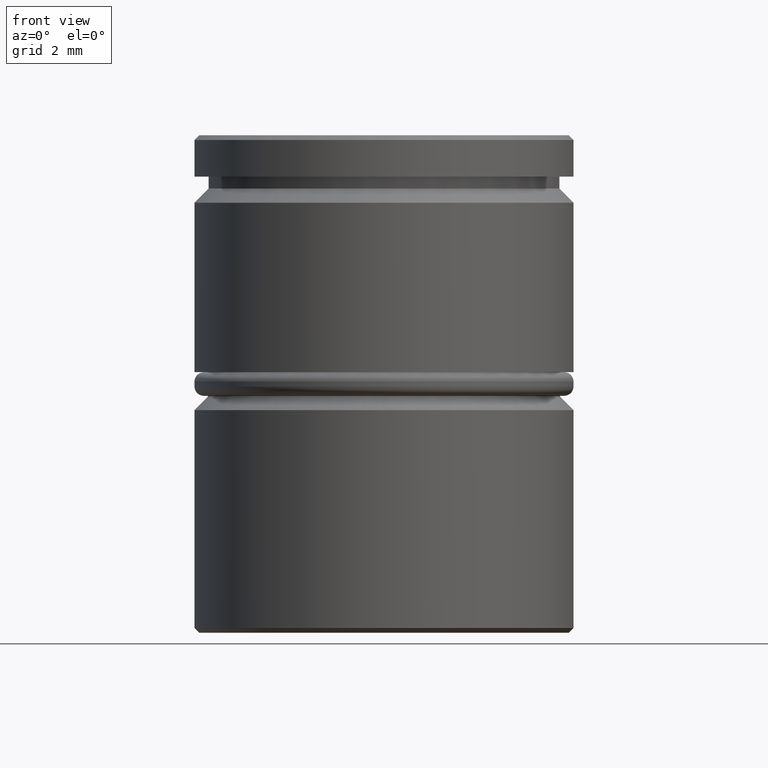
[diagram: clean part render]
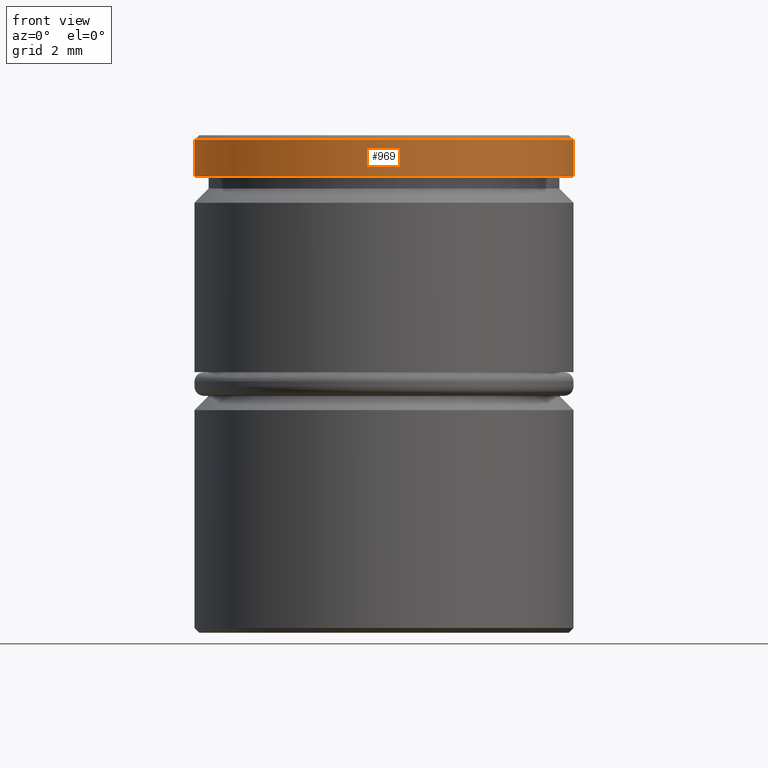
[diagram: same view with one face highlighted and labeled with its STEP entity id]
A machine part, front view. The second image highlights one B-rep face of the part: STEP entity #969.
In plain terms, the highlighted cylindrical surface (partial cylindrical patch) has radius 4 mm, axis along (-0, -0, 1).
Its self-contained STEP definition (entity closure, byte-faithful):
#93 = DIRECTION ( 'NONE',  ( 0.000000000000000000, 0.000000000000000000, -1.000000000000000000 ) ) ;
#102 = FACE_OUTER_BOUND ( 'NONE', #735, .T. ) ;
#114 = DIRECTION ( 'NONE',  ( 1.000000000000000000, 0.000000000000000000, 0.000000000000000000 ) ) ;
#133 = EDGE_CURVE ( 'NONE', #768, #572, #1059, .T. ) ;
#232 = VECTOR ( 'NONE', #983, 1000.000000000000000 ) ;
#241 = CARTESIAN_POINT ( 'NONE',  ( 0.000000000000000000, 0.000000000000000000, -0.8749999999999998890 ) ) ;
#259 = DIRECTION ( 'NONE',  ( -0.000000000000000000, -0.000000000000000000, 1.000000000000000000 ) ) ;
#294 = CARTESIAN_POINT ( 'NONE',  ( 4.000000000000000000, 0.000000000000000000, 0.000000000000000000 ) ) ;
#317 = EDGE_CURVE ( 'NONE', #565, #820, #779, .T. ) ;
#450 = LINE ( 'NONE', #294, #561 ) ;
#459 = CARTESIAN_POINT ( 'NONE',  ( 0.000000000000000000, 0.000000000000000000, 0.000000000000000000 ) ) ;
#476 = CARTESIAN_POINT ( 'NONE',  ( -4.000000000000000000, 4.898587196589412829E-16, -0.09999999999999766020 ) ) ;
#503 = DIRECTION ( 'NONE',  ( 1.000000000000000000, 0.000000000000000000, 0.000000000000000000 ) ) ;
#521 = EDGE_CURVE ( 'NONE', #565, #572, #1109, .T. ) ;
#525 = DIRECTION ( 'NONE',  ( 1.000000000000000000, 0.000000000000000000, 0.000000000000000000 ) ) ;
#561 = VECTOR ( 'NONE', #1170, 1000.000000000000000 ) ;
#565 = VERTEX_POINT ( 'NONE', #679 ) ;
#572 = VERTEX_POINT ( 'NONE', #476 ) ;
#635 = CARTESIAN_POINT ( 'NONE',  ( 0.000000000000000000, 0.000000000000000000, -0.09999999999999766020 ) ) ;
#679 = CARTESIAN_POINT ( 'NONE',  ( -4.000000000000000000, 4.898587196589412829E-16, -0.8749999999999998890 ) ) ;
#717 = AXIS2_PLACEMENT_3D ( 'NONE', #241, #259, #503 ) ;
#726 = DIRECTION ( 'NONE',  ( -0.000000000000000000, -0.000000000000000000, 1.000000000000000000 ) ) ;
#735 = EDGE_LOOP ( 'NONE', ( #986, #1092, #959, #985 ) ) ;
#768 = VERTEX_POINT ( 'NONE', #788 ) ;
#779 = CIRCLE ( 'NONE', #717, 4.000000000000000000 ) ;
#788 = CARTESIAN_POINT ( 'NONE',  ( 4.000000000000000000, 0.000000000000000000, -0.09999999999999766020 ) ) ;
#812 = CARTESIAN_POINT ( 'NONE',  ( -4.000000000000000000, 4.898587196589412829E-16, 0.000000000000000000 ) ) ;
#820 = VERTEX_POINT ( 'NONE', #901 ) ;
#901 = CARTESIAN_POINT ( 'NONE',  ( 4.000000000000000000, 0.000000000000000000, -0.8749999999999998890 ) ) ;
#959 = ORIENTED_EDGE ( 'NONE', *, *, #976, .T. ) ;
#969 = ADVANCED_FACE ( 'NONE', ( #102 ), #1179, .T. ) ;
#976 = EDGE_CURVE ( 'NONE', #820, #768, #450, .T. ) ;
#983 = DIRECTION ( 'NONE',  ( -0.000000000000000000, -0.000000000000000000, 1.000000000000000000 ) ) ;
#985 = ORIENTED_EDGE ( 'NONE', *, *, #133, .T. ) ;
#986 = ORIENTED_EDGE ( 'NONE', *, *, #521, .F. ) ;
#993 = AXIS2_PLACEMENT_3D ( 'NONE', #635, #93, #114 ) ;
#1059 = CIRCLE ( 'NONE', #993, 4.000000000000000000 ) ;
#1092 = ORIENTED_EDGE ( 'NONE', *, *, #317, .T. ) ;
#1109 = LINE ( 'NONE', #812, #232 ) ;
#1159 = AXIS2_PLACEMENT_3D ( 'NONE', #459, #726, #525 ) ;
#1170 = DIRECTION ( 'NONE',  ( -0.000000000000000000, -0.000000000000000000, 1.000000000000000000 ) ) ;
#1179 = CYLINDRICAL_SURFACE ( 'NONE', #1159, 4.000000000000000000 ) ;